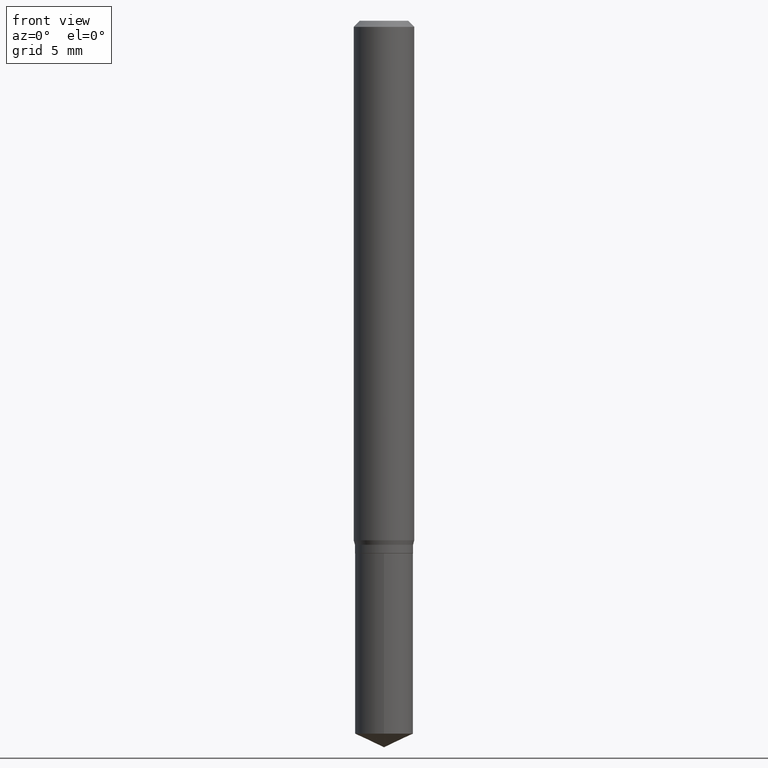
[diagram: clean part render]
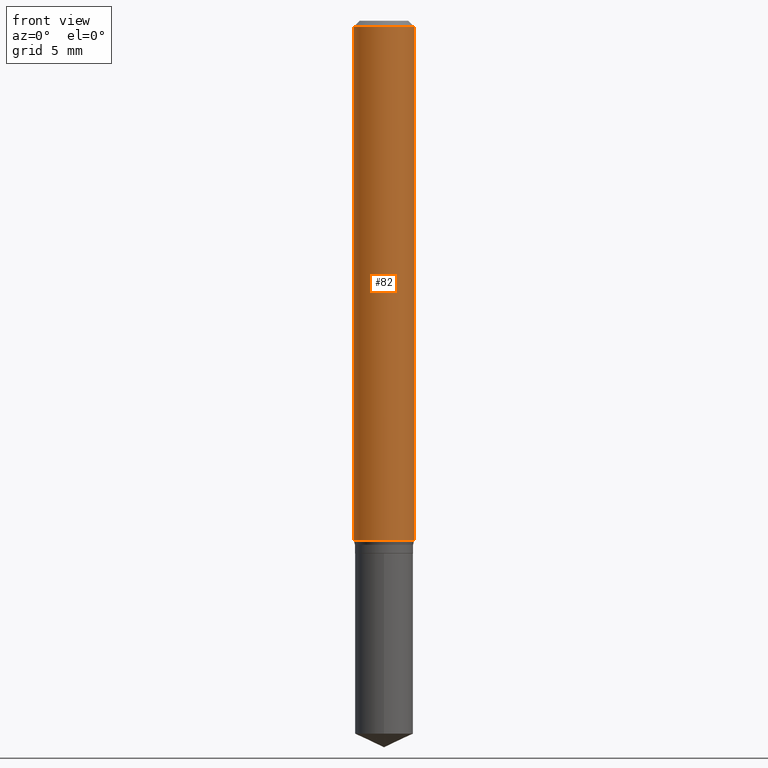
[diagram: same view with one face highlighted and labeled with its STEP entity id]
A machine part, front view. The second image highlights one B-rep face of the part: STEP entity #82.
In plain terms, the highlighted cylindrical surface (edge-blend (fillet) strip) has radius 1.5875 mm, axis along (-0, 0, 1).
Its self-contained STEP definition (entity closure, byte-faithful):
#34 = DIRECTION ( 'NONE',  ( -2.445468806185136877E-29, 3.491481338843145188E-15, 1.000000000000000000 ) ) ;
#49 = CARTESIAN_POINT ( 'NONE',  ( 3.056836007731440539E-31, -4.364351673553960451E-17, -0.01250000000000008049 ) ) ;
#64 = EDGE_CURVE ( 'NONE', #114, #458, #150, .T. ) ;
#79 = DIRECTION ( 'NONE',  ( 1.000000000000000000, -6.982962677686266711E-15, 4.876176775795935793E-29 ) ) ;
#82 = ADVANCED_FACE ( 'NONE', ( #397 ), #284, .T. ) ;
#84 = ORIENTED_EDGE ( 'NONE', *, *, #402, .F. ) ;
#89 = CARTESIAN_POINT ( 'NONE',  ( -0.06250000000000000000, -1.450335970644045520E-15, -0.01250000000000008049 ) ) ;
#99 = ORIENTED_EDGE ( 'NONE', *, *, #360, .T. ) ;
#114 = VERTEX_POINT ( 'NONE', #89 ) ;
#122 = EDGE_LOOP ( 'NONE', ( #84, #296, #99, #333 ) ) ;
#150 = CIRCLE ( 'NONE', #477, 0.06250000000000000000 ) ;
#155 = DIRECTION ( 'NONE',  ( 1.000000000000000000, -6.982962677686264344E-15, 0.000000000000000000 ) ) ;
#166 = AXIS2_PLACEMENT_3D ( 'NONE', #354, #368, #155 ) ;
#169 = EDGE_CURVE ( 'NONE', #206, #430, #407, .T. ) ;
#179 = CARTESIAN_POINT ( 'NONE',  ( 0.06250000000000012490, -4.181642011608071930E-15, -1.072669872981077521 ) ) ;
#198 = AXIS2_PLACEMENT_3D ( 'NONE', #459, #400, #79 ) ;
#206 = VERTEX_POINT ( 'NONE', #395 ) ;
#207 = LINE ( 'NONE', #364, #302 ) ;
#251 = LINE ( 'NONE', #432, #457 ) ;
#284 = CYLINDRICAL_SURFACE ( 'NONE', #198, 0.06250000000000006939 ) ;
#296 = ORIENTED_EDGE ( 'NONE', *, *, #169, .T. ) ;
#302 = VECTOR ( 'NONE', #353, 39.37007874015748143 ) ;
#318 = DIRECTION ( 'NONE',  ( -2.445468806185136597E-29, 3.491481338843145583E-15, 1.000000000000000000 ) ) ;
#333 = ORIENTED_EDGE ( 'NONE', *, *, #64, .F. ) ;
#346 = CARTESIAN_POINT ( 'NONE',  ( 0.06250000000000000000, -4.800786840909312308E-16, -0.01250000000000008049 ) ) ;
#353 = DIRECTION ( 'NONE',  ( -2.445468806185136877E-29, 3.491481338843145188E-15, 1.000000000000000000 ) ) ;
#354 = CARTESIAN_POINT ( 'NONE',  ( 2.623180713709797511E-29, -3.745206844252678682E-15, -1.072669872981077521 ) ) ;
#360 = EDGE_CURVE ( 'NONE', #430, #458, #207, .T. ) ;
#364 = CARTESIAN_POINT ( 'NONE',  ( 0.06250000000000006939, -4.364351673553921624E-16, 3.047610484872463374E-30 ) ) ;
#365 = DIRECTION ( 'NONE',  ( 1.000000000000000000, -6.982962677686266711E-15, 0.000000000000000000 ) ) ;
#368 = DIRECTION ( 'NONE',  ( -2.445468806185136597E-29, 3.491481338843145583E-15, 1.000000000000000000 ) ) ;
#395 = CARTESIAN_POINT ( 'NONE',  ( -0.06250000000000012490, -3.301117634402615672E-15, -1.072669872981077521 ) ) ;
#397 = FACE_OUTER_BOUND ( 'NONE', #122, .T. ) ;
#400 = DIRECTION ( 'NONE',  ( -2.445468806185136597E-29, 3.491481338843145583E-15, 1.000000000000000000 ) ) ;
#402 = EDGE_CURVE ( 'NONE', #206, #114, #251, .T. ) ;
#407 = CIRCLE ( 'NONE', #166, 0.06250000000000012490 ) ;
#430 = VERTEX_POINT ( 'NONE', #179 ) ;
#432 = CARTESIAN_POINT ( 'NONE',  ( -0.06250000000000006939, 4.440892098500631092E-16, -3.074334431409319267E-30 ) ) ;
#457 = VECTOR ( 'NONE', #34, 39.37007874015748143 ) ;
#458 = VERTEX_POINT ( 'NONE', #346 ) ;
#459 = CARTESIAN_POINT ( 'NONE',  ( 0.000000000000000000, 0.000000000000000000, 0.000000000000000000 ) ) ;
#477 = AXIS2_PLACEMENT_3D ( 'NONE', #49, #318, #365 ) ;